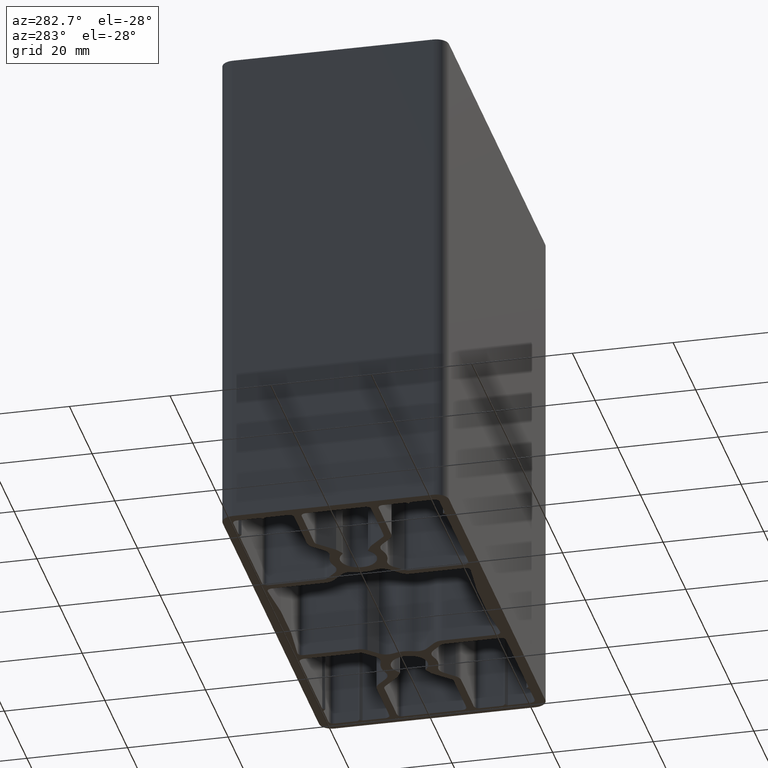
[diagram: clean part render]
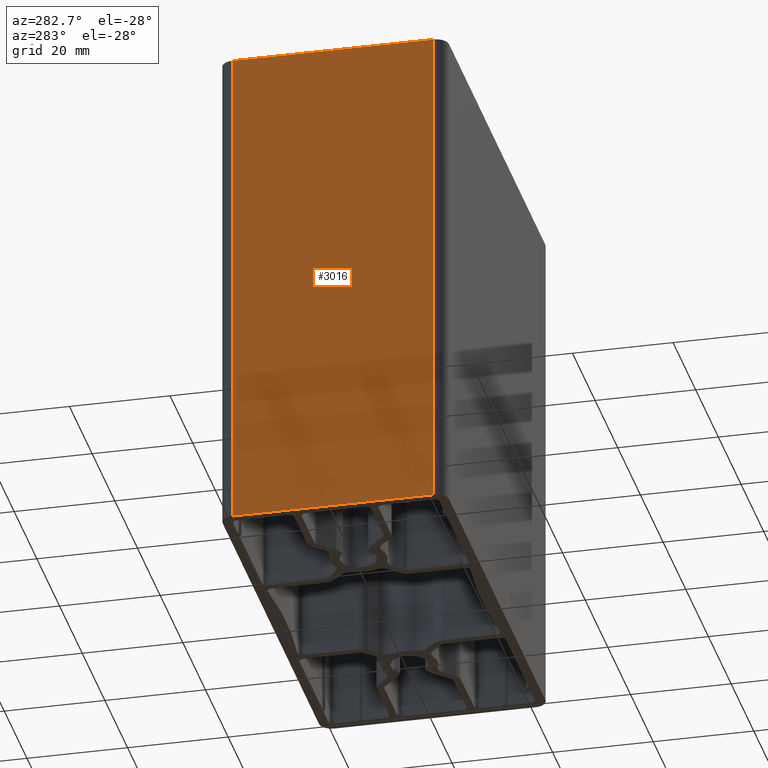
[diagram: same view with one face highlighted and labeled with its STEP entity id]
A machine part, auxiliary view. The second image highlights one B-rep face of the part: STEP entity #3016.
In plain terms, the highlighted planar face has unit normal (-1, 0, 0).
Its self-contained STEP definition (entity closure, byte-faithful):
#376=FACE_OUTER_BOUND('',#526,.T.);
#526=EDGE_LOOP('',(#2475,#2476,#2477,#2478));
#844=LINE('',#5053,#1152);
#845=LINE('',#5057,#1153);
#846=LINE('',#5059,#1154);
#847=LINE('',#5060,#1155);
#1152=VECTOR('',#4158,100.);
#1153=VECTOR('',#4163,40.);
#1154=VECTOR('',#4164,100.);
#1155=VECTOR('',#4165,40.);
#1449=VERTEX_POINT('',#5050);
#1450=VERTEX_POINT('',#5052);
#1451=VERTEX_POINT('',#5056);
#1452=VERTEX_POINT('',#5058);
#1887=EDGE_CURVE('',#1450,#1449,#844,.T.);
#1889=EDGE_CURVE('',#1449,#1451,#845,.T.);
#1890=EDGE_CURVE('',#1452,#1451,#846,.T.);
#1891=EDGE_CURVE('',#1450,#1452,#847,.T.);
#2475=ORIENTED_EDGE('',*,*,#1889,.T.);
#2476=ORIENTED_EDGE('',*,*,#1890,.F.);
#2477=ORIENTED_EDGE('',*,*,#1891,.F.);
#2478=ORIENTED_EDGE('',*,*,#1887,.T.);
#2868=PLANE('',#3300);
#3016=ADVANCED_FACE('',(#376),#2868,.T.);
#3300=AXIS2_PLACEMENT_3D('',#5055,#4161,#4162);
#4158=DIRECTION('',(0.,0.,1.));
#4161=DIRECTION('center_axis',(-1.,0.,0.));
#4162=DIRECTION('ref_axis',(0.,-1.,0.));
#4163=DIRECTION('',(0.,1.,0.));
#4164=DIRECTION('',(0.,0.,1.));
#4165=DIRECTION('',(0.,1.,0.));
#5050=CARTESIAN_POINT('',(-45.,-20.,100.));
#5052=CARTESIAN_POINT('',(-45.,-20.,0.));
#5053=CARTESIAN_POINT('',(-45.,-20.,0.));
#5055=CARTESIAN_POINT('Origin',(-45.,20.,0.));
#5056=CARTESIAN_POINT('',(-45.,20.,100.));
#5057=CARTESIAN_POINT('',(-45.,10.,100.));
#5058=CARTESIAN_POINT('',(-45.,20.,0.));
#5059=CARTESIAN_POINT('',(-45.,20.,0.));
#5060=CARTESIAN_POINT('',(-45.,10.,0.));